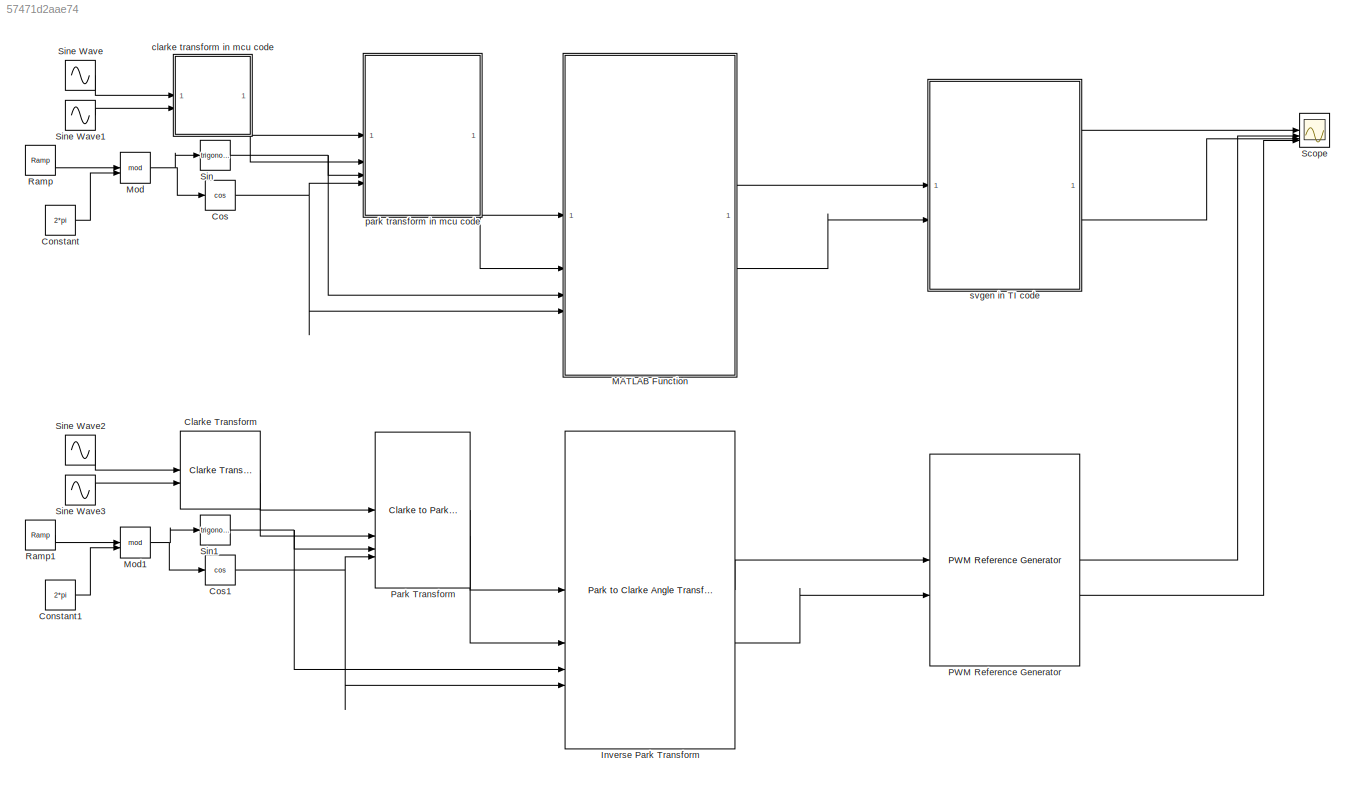
MODEL slx_57471d2aae74
KIND model
CONFIG AbsTol = auto
CONFIG EnableMultiTasking = off
CONFIG FixedStep = auto
CONFIG MaxStep = auto
CONFIG MinStep = auto
CONFIG RelTol = 1e-3
CONFIG SampleTimeConstraint = Unconstrained
CONFIG SolverName = VariableStepAuto
CONFIG StartTime = 0.0
CONFIG StopTime = 3
BLOCK [Reference] Clarke Transform  REF=mcbeeMathTransformLib/Clarke Transform
  LibrarySourceBlock = mcbhdllib/Controls/Math Transforms/Clarke Transform
  SourceBlock = mcbeeMathTransformLib/Clarke Transform
  SourceType = Clarke Transform
BLOCK [Constant] Constant
  Value = 2*pi
BLOCK [Constant] Constant1
  Value = 2*pi
BLOCK [Trigonometry] Cos
  Operator = cos
BLOCK [Trigonometry] Cos1
  Operator = cos
BLOCK [Reference] Inverse Park Transform  REF=mcbeeMathTransformLib/Park to Clarke
Angle Transform
  LibrarySourceBlock = mcblib/Controls/Math Transforms/Inverse Park Transform
  SourceBlock = mcbeeMathTransformLib/Park to Clarke\nAngle Transform
  SourceType = Park to Clarke Angle Transform
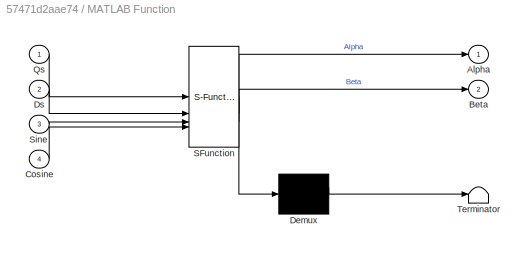
BLOCK [SubSystem] MATLAB Function
  ErrorFcn = Stateflow.Translate.translate
  PermitHierarchicalResolution = ExplicitOnly
  SFBlockType = MATLAB Function
  TreatAsAtomicUnit = on
BLOCK [Demux] MATLAB Function/ Demux 
  Outputs = 1
BLOCK [S-Function] MATLAB Function/ SFunction 
  EnableBusSupport = off
  FunctionName = sf_sfun
  PortCounts = [4 3]
  SFcnIsStateOwnerBlock = off
  SFunctionDeploymentMode = off
  Tag = Stateflow S-Function 4
BLOCK [Terminator] MATLAB Function/ Terminator 
BLOCK [Outport] MATLAB Function/Alpha
BLOCK [Outport] MATLAB Function/Beta
  Port = 2
BLOCK [Inport] MATLAB Function/Cosine
  Port = 4
BLOCK [Inport] MATLAB Function/Ds
  Port = 2
BLOCK [Inport] MATLAB Function/Qs
BLOCK [Inport] MATLAB Function/Sine
  Port = 3
BLOCK [Math] Mod
  Operator = mod
BLOCK [Math] Mod1
  Operator = mod
BLOCK [Reference] PWM Reference Generator  REF=mcbcontrolslib/PWM Reference Generator
  LibrarySourceBlock = mcbhdllib/Controls/Math Transforms/PWM Reference Generator
  SourceBlock = mcbcontrolslib/PWM Reference Generator
  SourceType = PWM Modulation
BLOCK [Reference] Park Transform  REF=mcbeeMathTransformLib/Clarke to Park
Angle Transform
  LibrarySourceBlock = mcbhdllib/Controls/Math Transforms/Park Transform
  SourceBlock = mcbeeMathTransformLib/Clarke to Park\nAngle Transform
  SourceType = Clarke to Park Angle Transform
BLOCK [Reference] Ramp  REF=simulink/Sources/Ramp
  SourceBlock = simulink/Sources/Ramp
  SourceType = Ramp
BLOCK [Reference] Ramp1  REF=simulink/Sources/Ramp
  SourceBlock = simulink/Sources/Ramp
  SourceType = Ramp
BLOCK [Scope] Scope
  ActiveDisplayYMaximum = 1.2500000000030824
  ActiveDisplayYMinimum = -1.2500000000026639
  Floating = off
  GraphicalSettings = {"AxesScalingProperties":{"AlignXAxis":"Center","AlignYAxis":"Center","AutoScaleXAxisLimits":false,"AxesScaling":"Manual","AxesScalingNumUpdates":10,"ExpandOnly":true,"ScaleAxesLimitsAtStop":false,"XAxisDataRange":100,"YAxisDataRange":80},"DisplayProperties":{"ColorOrder":["auto","auto","auto","auto","auto","auto","auto","auto","auto","auto","auto","auto","auto","auto","auto","auto","auto","auto",...<+2483ch>
  MultipleDisplayCache = [{"MaxYLimMag":1.2500000000030824,"MaxYLimReal":1.2500000000030824,"MinYLimMag":0,"MinYLimReal":-1.2500000000026639,"PlotAsMagnitudePhase":false,"ShowGrid":true,"ShowLegend":true,"Title":"%<SignalLabel>","YLabel":""}]
  NumInputPorts = 4
  ScopeFrameLocation = window
  ShowLegend = on
  WasSavedAsWebScope = on
  WindowPosition = [1.000000,1.000000,1536.000000,937.000000,]
BLOCK [Trigonometry] Sin
BLOCK [Trigonometry] Sin1
BLOCK [Sin] Sine Wave
  Frequency = 2*pi
  SampleTime = 5e-5
BLOCK [Sin] Sine Wave1
  Frequency = 2*pi
  Phase = 2*pi/3
  SampleTime = 5e-5
BLOCK [Sin] Sine Wave2
  Frequency = 2*pi
  SampleTime = 5e-5
BLOCK [Sin] Sine Wave3
  Frequency = 2*pi
  Phase = 2*pi/3
  SampleTime = 5e-5
  VectorParams1D = off
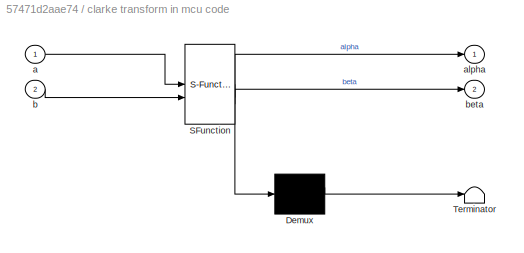
BLOCK [SubSystem] clarke transform in mcu code
  ErrorFcn = Stateflow.Translate.translate
  PermitHierarchicalResolution = ExplicitOnly
  SFBlockType = MATLAB Function
  TreatAsAtomicUnit = on
BLOCK [Demux] clarke transform in mcu code/ Demux 
  Outputs = 1
BLOCK [S-Function] clarke transform in mcu code/ SFunction 
  EnableBusSupport = off
  FunctionName = sf_sfun
  PortCounts = [2 3]
  SFcnIsStateOwnerBlock = off
  SFunctionDeploymentMode = off
  Tag = Stateflow S-Function 1
BLOCK [Terminator] clarke transform in mcu code/ Terminator 
BLOCK [Inport] clarke transform in mcu code/a
BLOCK [Outport] clarke transform in mcu code/alpha
BLOCK [Inport] clarke transform in mcu code/b
  Port = 2
BLOCK [Outport] clarke transform in mcu code/beta
  Port = 2
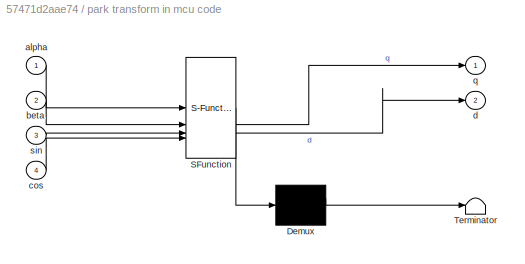
BLOCK [SubSystem] park transform in mcu code
  ErrorFcn = Stateflow.Translate.translate
  PermitHierarchicalResolution = ExplicitOnly
  SFBlockType = MATLAB Function
  TreatAsAtomicUnit = on
BLOCK [Demux] park transform in mcu code/ Demux 
  Outputs = 1
BLOCK [S-Function] park transform in mcu code/ SFunction 
  EnableBusSupport = off
  FunctionName = sf_sfun
  PortCounts = [4 3]
  SFcnIsStateOwnerBlock = off
  SFunctionDeploymentMode = off
  Tag = Stateflow S-Function 2
BLOCK [Terminator] park transform in mcu code/ Terminator 
BLOCK [Inport] park transform in mcu code/alpha
BLOCK [Inport] park transform in mcu code/beta
  Port = 2
BLOCK [Inport] park transform in mcu code/cos
  Port = 4
BLOCK [Outport] park transform in mcu code/d
  Port = 2
BLOCK [Outport] park transform in mcu code/q
BLOCK [Inport] park transform in mcu code/sin
  Port = 3
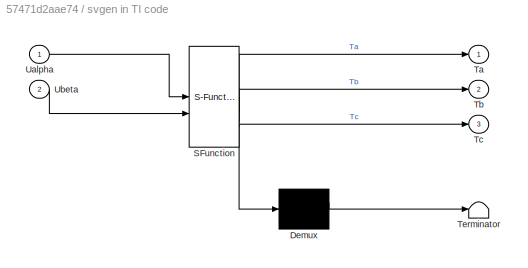
BLOCK [SubSystem] svgen in TI code
  ErrorFcn = Stateflow.Translate.translate
  PermitHierarchicalResolution = ExplicitOnly
  SFBlockType = MATLAB Function
  TreatAsAtomicUnit = on
BLOCK [Demux] svgen in TI code/ Demux 
  Outputs = 1
BLOCK [S-Function] svgen in TI code/ SFunction 
  EnableBusSupport = off
  FunctionName = sf_sfun
  PortCounts = [2 4]
  SFcnIsStateOwnerBlock = off
  SFunctionDeploymentMode = off
  Tag = Stateflow S-Function 3
BLOCK [Terminator] svgen in TI code/ Terminator 
BLOCK [Outport] svgen in TI code/Ta
BLOCK [Outport] svgen in TI code/Tb
  Port = 2
BLOCK [Outport] svgen in TI code/Tc
  Port = 3
BLOCK [Inport] svgen in TI code/Ualpha
BLOCK [Inport] svgen in TI code/Ubeta
  Port = 2
LINE Clarke Transform:1 -> Park Transform:1
LINE Clarke Transform:2 -> Park Transform:2
LINE Constant1:1 -> Mod1:2
LINE Constant:1 -> Mod:2
NET Cos1:1 -> Inverse Park Transform:4, Park Transform:4
NET Cos:1 -> MATLAB Function:4, park transform in mcu code:4
LINE Inverse Park Transform:1 -> PWM Reference Generator:1
LINE Inverse Park Transform:2 -> PWM Reference Generator:2
LINE MATLAB Function:1 -> svgen in TI code:1
LINE MATLAB Function:2 -> svgen in TI code:2
NET Mod1:1 -> Cos1:1, Sin1:1
NET Mod:1 -> Cos:1, Sin:1
LINE PWM Reference Generator:1 -> Scope:2
LINE PWM Reference Generator:2 -> Scope:4
LINE Park Transform:1 -> Inverse Park Transform:1
LINE Park Transform:2 -> Inverse Park Transform:2
LINE Ramp1:1 -> Mod1:1
LINE Ramp:1 -> Mod:1
NET Sin1:1 -> Inverse Park Transform:3, Park Transform:3
NET Sin:1 -> MATLAB Function:3, park transform in mcu code:3
LINE Sine Wave1:1 -> clarke transform in mcu code:2
LINE Sine Wave2:1 -> Clarke Transform:1
LINE Sine Wave3:1 -> Clarke Transform:2
LINE Sine Wave:1 -> clarke transform in mcu code:1
LINE clarke transform in mcu code:1 -> park transform in mcu code:1
LINE clarke transform in mcu code:2 -> park transform in mcu code:2
LINE park transform in mcu code:1 -> MATLAB Function:1
LINE park transform in mcu code:2 -> MATLAB Function:2
LINE svgen in TI code:1 -> Scope:1
LINE svgen in TI code:2 -> Scope:3
note: NET lines group one-source signal fan-out (src -> all destinations, sorted); 1:1 wires keep LINE
CHART clarke transform in mcu code states=1 transitions=1
  STATE_LABEL 'eML_blk_kernel()'
  STATE_LABEL 'SCRIPT:\nfunction [alpha, beta]= clarke(a, b)\n\nalpha = a;\nbeta = (a+2*b)*0.57735026918963;\n\n'
CHART park transform in mcu code states=1 transitions=1
  STATE_LABEL 'eML_blk_kernel()'
  STATE_LABEL 'SCRIPT:\nfunction [q, d]= park(alpha, beta, sin, cos)\n\nd = alpha*cos + beta*sin;\nq = beta*cos - alpha*sin;\n'
CHART svgen in TI code states=1 transitions=1
  STATE_LABEL 'eML_blk_kernel()'
  STATE_LABEL 'SCRIPT:\nfunction [Ta, Tb, Tc]= svgen(Ualpha, Ubeta)\n    tmp1= Ubeta;\t\t\t\t\t\t\t\t\t\t\t\t\t\t\t\n    tmp2= Ubeta/2 + 0.866*Ualpha;\t\t\t\t\t\n    tmp3= tmp2 -  tmp1;\t\t\t\t\t\t\t\t\t\t\t\t\n\t\t\t\t\t\t\t\t\t\t\t\t\t\t\t    \n    VecSector = 3;\n    if(tmp2> 0)\n        VecSector = VecSector-1;\n    end\n    if (tmp3> 0)\n        VecSector = VecSector-1;\n    end\n    if(tmp1< 0)\n        VecSector = 7-VecSector;\n    end\n\n    if( VecSector==1 ||  VecS...<+591ch>'
CHART MATLAB Function states=1 transitions=1
  STATE_LABEL 'eML_blk_kernel()'
  STATE_LABEL 'SCRIPT:\nfunction [Alpha, Beta] = ipark(Qs, Ds, Sine, Cosine)\n\nAlpha = (Ds*Cosine) - (Qs*Sine);\nBeta  = (Qs*Cosine) + (Ds*Sine);'
CHART  states=0 transitions=0
CHART  states=0 transitions=0
CHART  states=0 transitions=0
CHART  states=0 transitions=0
